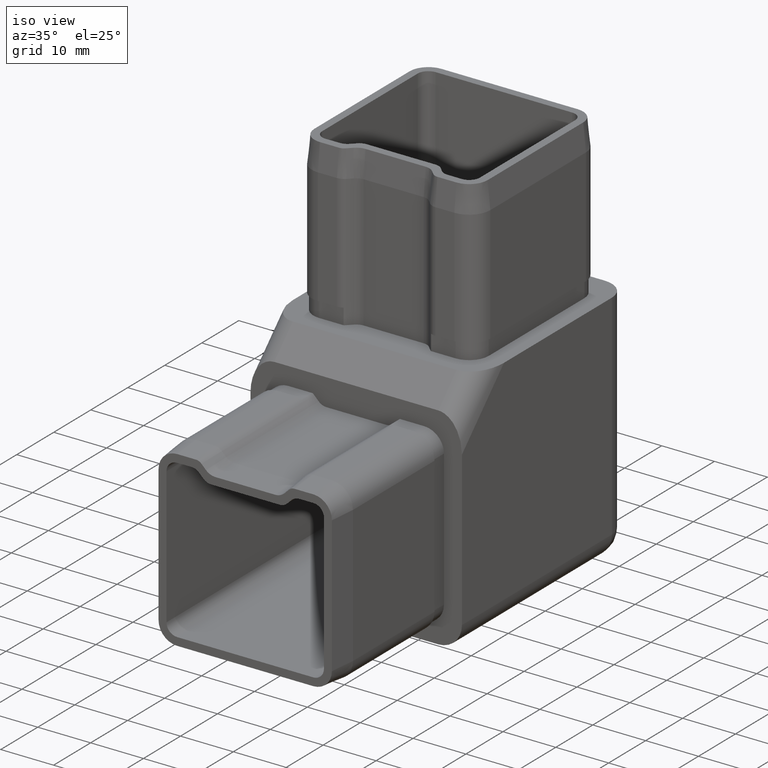
[diagram: clean part render]
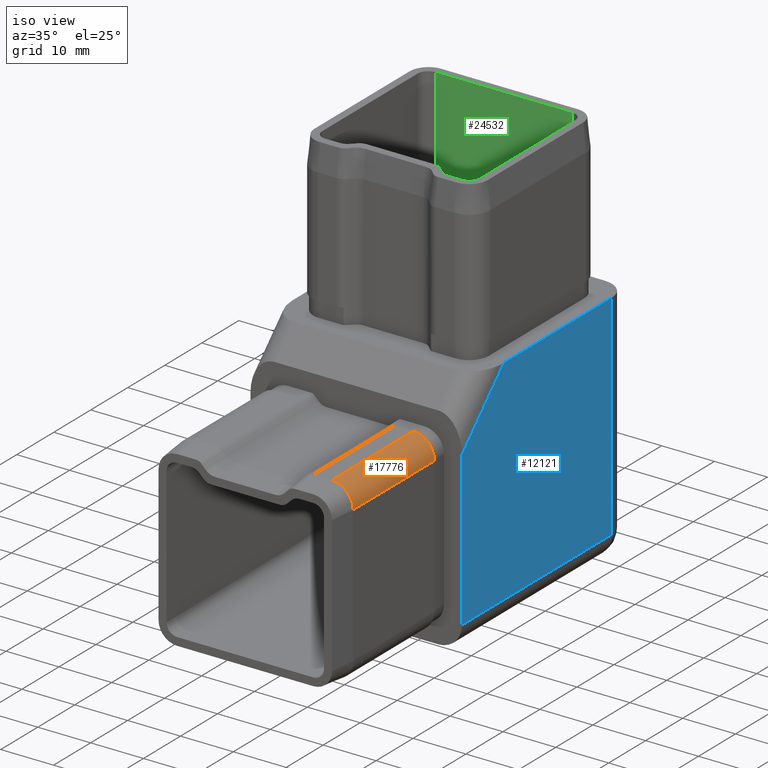
[diagram: same view with three faces highlighted in distinct colors, each labeled with its STEP entity id]
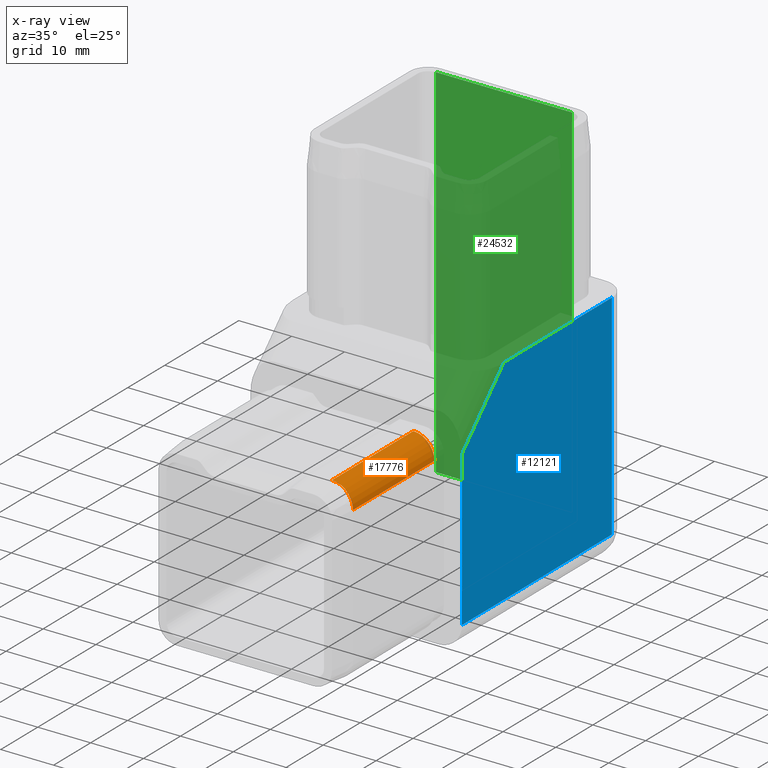
[diagram: x-ray of the same camera — body ghosted, the three highlighted faces saturated]
A machine part, iso view with three faces highlighted in distinct colors.
The next image is the same camera in x-ray (body ghosted, the three faces saturated) — at least one of them is partly hidden behind the body in this view.
Their STEP definitions:

[orange] entity #17776 — the highlighted cylindrical surface (edge-blend (fillet) strip) has radius 4 mm, axis along (-0, 1, 0).
#629 = LINE ( 'NONE', #14169, #18772 ) ;
#1207 = CIRCLE ( 'NONE', #15876, 4.000000000000003600 ) ;
#2100 = EDGE_CURVE ( 'NONE', #2709, #17437, #629, .T. ) ;
#2428 = DIRECTION ( 'NONE',  ( 0.0000000000000000000, -1.000000000000000000, -4.440892098500625200E-016 ) ) ;
#2462 = DIRECTION ( 'NONE',  ( 0.0000000000000000000, 0.0000000000000000000, 1.000000000000000000 ) ) ;
#2709 = VERTEX_POINT ( 'NONE', #9414 ) ;
#3664 = ORIENTED_EDGE ( 'NONE', *, *, #4892, .T. ) ;
#3775 = DIRECTION ( 'NONE',  ( 0.0000000000000000000, 1.000000000000000000, 4.440892098500625200E-016 ) ) ;
#4419 = CARTESIAN_POINT ( 'NONE',  ( 12.90000000000000900, -25.50000000000000400, 10.39999999999998800 ) ) ;
#4507 = ORIENTED_EDGE ( 'NONE', *, *, #25263, .F. ) ;
#4892 = EDGE_CURVE ( 'NONE', #7766, #17437, #1207, .T. ) ;
#4906 = CARTESIAN_POINT ( 'NONE',  ( 12.90000000000000400, -25.50000000000000400, 14.39999999999999500 ) ) ;
#5841 = CARTESIAN_POINT ( 'NONE',  ( 16.90000000000001300, -25.50000000000000400, 10.39999999999998600 ) ) ;
#6817 = DIRECTION ( 'NONE',  ( 0.0000000000000000000, -1.000000000000000000, -4.440892098500625200E-016 ) ) ;
#7766 = VERTEX_POINT ( 'NONE', #5841 ) ;
#8711 = DIRECTION ( 'NONE',  ( -0.0000000000000000000, 1.000000000000000000, 4.440892098500625200E-016 ) ) ;
#9263 = AXIS2_PLACEMENT_3D ( 'NONE', #14920, #8711, #2462 ) ;
#9414 = CARTESIAN_POINT ( 'NONE',  ( 12.90000000000001100, -47.49999999999999300, 14.39999999999998100 ) ) ;
#10983 = ORIENTED_EDGE ( 'NONE', *, *, #2100, .F. ) ;
#10998 = EDGE_CURVE ( 'NONE', #7766, #16423, #12239, .T. ) ;
#12239 = LINE ( 'NONE', #25195, #16131 ) ;
#12525 = FACE_OUTER_BOUND ( 'NONE', #17177, .T. ) ;
#13465 = ORIENTED_EDGE ( 'NONE', *, *, #10998, .F. ) ;
#14169 = CARTESIAN_POINT ( 'NONE',  ( 12.90000000000000900, -52.50000000000000700, 14.39999999999997500 ) ) ;
#14920 = CARTESIAN_POINT ( 'NONE',  ( 12.90000000000000900, -52.50000000000000700, 10.39999999999997500 ) ) ;
#14973 = DIRECTION ( 'NONE',  ( 0.0000000000000000000, 8.673617379884027600E-016, -1.000000000000000000 ) ) ;
#15119 = CARTESIAN_POINT ( 'NONE',  ( 12.90000000000000900, -47.49999999999999300, 10.39999999999997900 ) ) ;
#15876 = AXIS2_PLACEMENT_3D ( 'NONE', #4419, #2428, #14973 ) ;
#16131 = VECTOR ( 'NONE', #6817, 1000.000000000000000 ) ;
#16423 = VERTEX_POINT ( 'NONE', #19617 ) ;
#16889 = CIRCLE ( 'NONE', #17841, 4.000000000000003600 ) ;
#17177 = EDGE_LOOP ( 'NONE', ( #10983, #4507, #13465, #3664 ) ) ;
#17437 = VERTEX_POINT ( 'NONE', #4906 ) ;
#17776 = ADVANCED_FACE ( 'NONE', ( #12525 ), #23791, .T. ) ;
#17841 = AXIS2_PLACEMENT_3D ( 'NONE', #15119, #19004, #23043 ) ;
#18772 = VECTOR ( 'NONE', #3775, 1000.000000000000000 ) ;
#19004 = DIRECTION ( 'NONE',  ( 0.0000000000000000000, -1.000000000000000000, -4.440892098500625200E-016 ) ) ;
#19617 = CARTESIAN_POINT ( 'NONE',  ( 16.90000000000001300, -47.49999999999999300, 10.39999999999997700 ) ) ;
#23043 = DIRECTION ( 'NONE',  ( 0.0000000000000000000, 0.0000000000000000000, -1.000000000000000000 ) ) ;
#23791 = CYLINDRICAL_SURFACE ( 'NONE', #9263, 4.000000000000000000 ) ;
#25195 = CARTESIAN_POINT ( 'NONE',  ( 16.90000000000000900, -52.50000000000000700, 10.39999999999997500 ) ) ;
#25263 = EDGE_CURVE ( 'NONE', #16423, #2709, #16889, .T. ) ;

[blue] entity #12121 — the highlighted planar face has unit normal (-1, -0, 0).
#330 = EDGE_LOOP ( 'NONE', ( #26557, #21388, #12922, #25220, #959 ) ) ;
#959 = ORIENTED_EDGE ( 'NONE', *, *, #24962, .T. ) ;
#1697 = DIRECTION ( 'NONE',  ( -1.541976423090495400E-016, 1.000000000000000000, -0.0000000000000000000 ) ) ;
#2152 = VECTOR ( 'NONE', #15664, 1000.000000000000000 ) ;
#4870 = DIRECTION ( 'NONE',  ( -1.541976423090495400E-016, 1.000000000000000000, 0.0000000000000000000 ) ) ;
#5227 = CARTESIAN_POINT ( 'NONE',  ( 20.00000000000000400, -22.50000000000000000, 11.13603896932105500 ) ) ;
#6793 = CARTESIAN_POINT ( 'NONE',  ( 19.99999999999999600, 22.50000000000000000, 22.50000000000000000 ) ) ;
#7212 = VECTOR ( 'NONE', #8708, 1000.000000000000000 ) ;
#7655 = CARTESIAN_POINT ( 'NONE',  ( 19.99999999999999600, 18.00000000000000400, 22.50000000000000000 ) ) ;
#7708 = FACE_OUTER_BOUND ( 'NONE', #330, .T. ) ;
#8508 = VERTEX_POINT ( 'NONE', #7655 ) ;
#8708 = DIRECTION ( 'NONE',  ( -0.0000000000000000000, -0.0000000000000000000, 1.000000000000000000 ) ) ;
#9084 = CARTESIAN_POINT ( 'NONE',  ( 20.00000000000000000, -11.13603896932106900, 22.50000000000000000 ) ) ;
#9630 = LINE ( 'NONE', #15787, #24737 ) ;
#10135 = EDGE_CURVE ( 'NONE', #24744, #14300, #10288, .T. ) ;
#10204 = VECTOR ( 'NONE', #4870, 1000.000000000000000 ) ;
#10251 = AXIS2_PLACEMENT_3D ( 'NONE', #6793, #16909, #23294 ) ;
#10288 = LINE ( 'NONE', #21188, #10204 ) ;
#12121 = ADVANCED_FACE ( 'NONE', ( #7708 ), #13217, .F. ) ;
#12145 = CARTESIAN_POINT ( 'NONE',  ( 20.00000000000000400, -22.50000000000000000, -17.99999999999998200 ) ) ;
#12922 = ORIENTED_EDGE ( 'NONE', *, *, #21577, .T. ) ;
#13015 = LINE ( 'NONE', #19139, #7212 ) ;
#13217 = PLANE ( 'NONE',  #10251 ) ;
#14300 = VERTEX_POINT ( 'NONE', #17826 ) ;
#15076 = LINE ( 'NONE', #20075, #2152 ) ;
#15664 = DIRECTION ( 'NONE',  ( 1.090341985197064800E-016, -0.7071067811865465700, -0.7071067811865485700 ) ) ;
#15787 = CARTESIAN_POINT ( 'NONE',  ( 19.99999999999999600, 22.50000000000000000, 22.50000000000000000 ) ) ;
#16053 = VECTOR ( 'NONE', #19867, 1000.000000000000000 ) ;
#16909 = DIRECTION ( 'NONE',  ( -1.000000000000000000, -1.541976423090495400E-016, 0.0000000000000000000 ) ) ;
#17826 = CARTESIAN_POINT ( 'NONE',  ( 19.99999999999999600, 18.00000000000000400, -17.99999999999999600 ) ) ;
#18330 = EDGE_CURVE ( 'NONE', #25398, #21553, #15076, .T. ) ;
#19139 = CARTESIAN_POINT ( 'NONE',  ( 19.99999999999999600, 18.00000000000000400, 22.50000000000000000 ) ) ;
#19731 = EDGE_CURVE ( 'NONE', #25398, #8508, #9630, .T. ) ;
#19867 = DIRECTION ( 'NONE',  ( -0.0000000000000000000, -0.0000000000000000000, -1.000000000000000000 ) ) ;
#20075 = CARTESIAN_POINT ( 'NONE',  ( 20.00000000000000400, -19.31801948466052500, 14.31801948466053500 ) ) ;
#21188 = CARTESIAN_POINT ( 'NONE',  ( 19.99999999999999600, 22.50000000000000000, -17.99999999999999600 ) ) ;
#21388 = ORIENTED_EDGE ( 'NONE', *, *, #18330, .T. ) ;
#21495 = LINE ( 'NONE', #24101, #16053 ) ;
#21553 = VERTEX_POINT ( 'NONE', #5227 ) ;
#21577 = EDGE_CURVE ( 'NONE', #21553, #24744, #21495, .T. ) ;
#23294 = DIRECTION ( 'NONE',  ( 1.541976423090495400E-016, -1.000000000000000000, 0.0000000000000000000 ) ) ;
#24101 = CARTESIAN_POINT ( 'NONE',  ( 20.00000000000000400, -22.50000000000000000, 22.50000000000000000 ) ) ;
#24737 = VECTOR ( 'NONE', #1697, 1000.000000000000000 ) ;
#24744 = VERTEX_POINT ( 'NONE', #12145 ) ;
#24962 = EDGE_CURVE ( 'NONE', #14300, #8508, #13015, .T. ) ;
#25220 = ORIENTED_EDGE ( 'NONE', *, *, #10135, .T. ) ;
#25398 = VERTEX_POINT ( 'NONE', #9084 ) ;
#26557 = ORIENTED_EDGE ( 'NONE', *, *, #19731, .F. ) ;

[green] entity #24532 — the highlighted planar face has unit normal (0, -1, 0).
#169 = DIRECTION ( 'NONE',  ( 1.000000000000000000, -0.0000000000000000000, -0.0000000000000000000 ) ) ;
#1000 = ORIENTED_EDGE ( 'NONE', *, *, #18552, .T. ) ;
#1119 = CARTESIAN_POINT ( 'NONE',  ( -14.90000000000000600, 17.39999999999999900, 52.50000000000000000 ) ) ;
#1820 = VECTOR ( 'NONE', #8614, 1000.000000000000000 ) ;
#1878 = EDGE_CURVE ( 'NONE', #2261, #22741, #12629, .T. ) ;
#2261 = VERTEX_POINT ( 'NONE', #12703 ) ;
#3247 = CARTESIAN_POINT ( 'NONE',  ( -12.90000000000000700, 17.39999999999999900, -15.89999999999999700 ) ) ;
#3302 = DIRECTION ( 'NONE',  ( 0.0000000000000000000, -1.000000000000000000, 0.0000000000000000000 ) ) ;
#4167 = CARTESIAN_POINT ( 'NONE',  ( 12.90000000000000000, 17.39999999999999900, 52.50000000000000000 ) ) ;
#4280 = CARTESIAN_POINT ( 'NONE',  ( -12.90000000000000600, 17.39999999999999900, 12.49999999999999600 ) ) ;
#5761 = EDGE_LOOP ( 'NONE', ( #10547, #16013, #8699, #1000 ) ) ;
#6146 = CARTESIAN_POINT ( 'NONE',  ( 14.89999999999999900, 17.39999999999999900, -15.89999999999999700 ) ) ;
#8614 = DIRECTION ( 'NONE',  ( 0.0000000000000000000, 0.0000000000000000000, -1.000000000000000000 ) ) ;
#8699 = ORIENTED_EDGE ( 'NONE', *, *, #21213, .T. ) ;
#8856 = VERTEX_POINT ( 'NONE', #16800 ) ;
#9036 = AXIS2_PLACEMENT_3D ( 'NONE', #17264, #3302, #11125 ) ;
#10547 = ORIENTED_EDGE ( 'NONE', *, *, #16697, .T. ) ;
#11058 = DIRECTION ( 'NONE',  ( -1.000000000000000000, -0.0000000000000000000, -0.0000000000000000000 ) ) ;
#11125 = DIRECTION ( 'NONE',  ( 0.0000000000000000000, -0.0000000000000000000, -1.000000000000000000 ) ) ;
#12496 = LINE ( 'NONE', #4280, #1820 ) ;
#12629 = LINE ( 'NONE', #4167, #23249 ) ;
#12703 = CARTESIAN_POINT ( 'NONE',  ( 12.90000000000000000, 17.39999999999999900, -15.89999999999999700 ) ) ;
#12887 = LINE ( 'NONE', #6146, #14488 ) ;
#14488 = VECTOR ( 'NONE', #169, 1000.000000000000000 ) ;
#14705 = DIRECTION ( 'NONE',  ( -0.0000000000000000000, -0.0000000000000000000, 1.000000000000000000 ) ) ;
#16013 = ORIENTED_EDGE ( 'NONE', *, *, #1878, .T. ) ;
#16697 = EDGE_CURVE ( 'NONE', #23640, #2261, #12887, .T. ) ;
#16800 = CARTESIAN_POINT ( 'NONE',  ( -12.90000000000000600, 17.39999999999999900, 52.50000000000000000 ) ) ;
#17264 = CARTESIAN_POINT ( 'NONE',  ( -20.00000000000000400, 17.39999999999999900, 22.50000000000000000 ) ) ;
#18552 = EDGE_CURVE ( 'NONE', #8856, #23640, #12496, .T. ) ;
#19812 = FACE_OUTER_BOUND ( 'NONE', #5761, .T. ) ;
#19894 = PLANE ( 'NONE',  #9036 ) ;
#20543 = LINE ( 'NONE', #1119, #23437 ) ;
#21213 = EDGE_CURVE ( 'NONE', #22741, #8856, #20543, .T. ) ;
#22741 = VERTEX_POINT ( 'NONE', #25271 ) ;
#23249 = VECTOR ( 'NONE', #14705, 1000.000000000000000 ) ;
#23437 = VECTOR ( 'NONE', #11058, 1000.000000000000000 ) ;
#23640 = VERTEX_POINT ( 'NONE', #3247 ) ;
#24532 = ADVANCED_FACE ( 'NONE', ( #19812 ), #19894, .T. ) ;
#25271 = CARTESIAN_POINT ( 'NONE',  ( 12.90000000000000000, 17.39999999999999900, 52.50000000000000000 ) ) ;